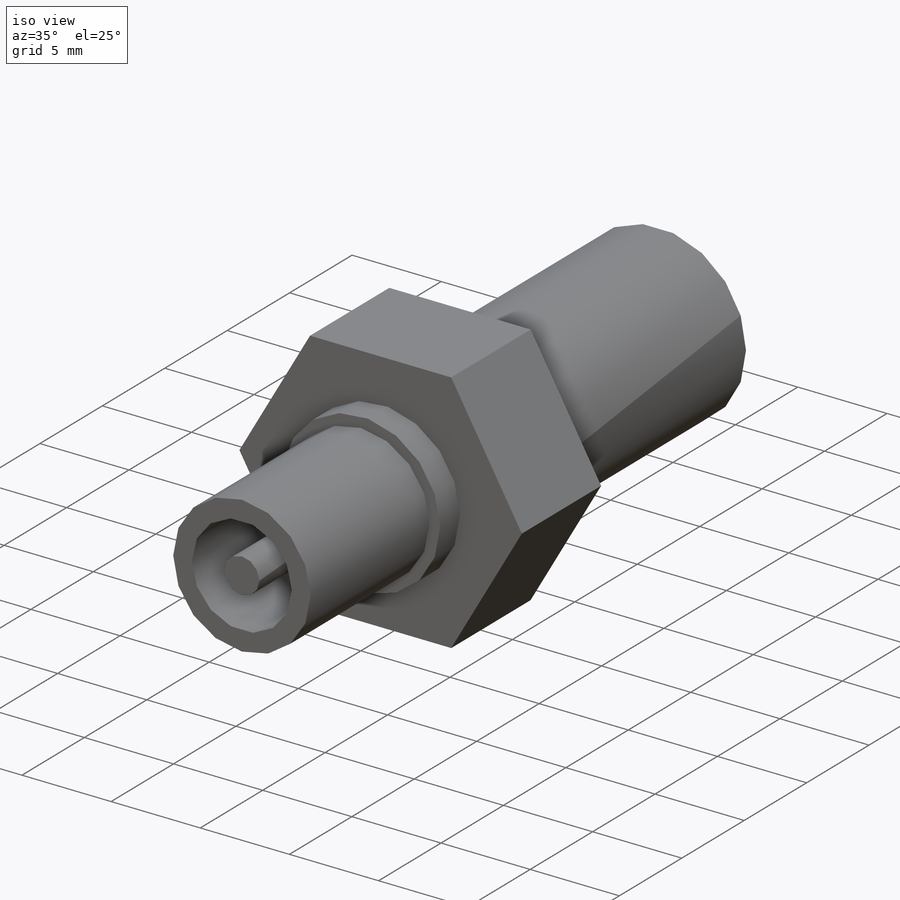
[diagram: iso view]
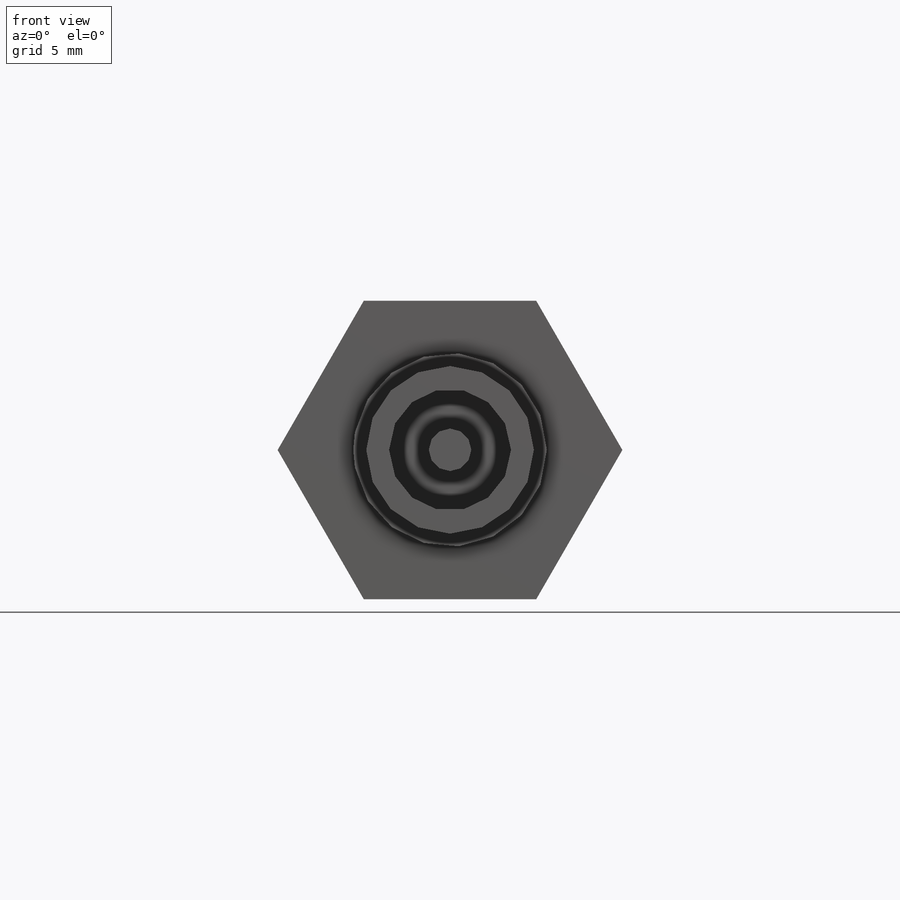
[diagram: front view]
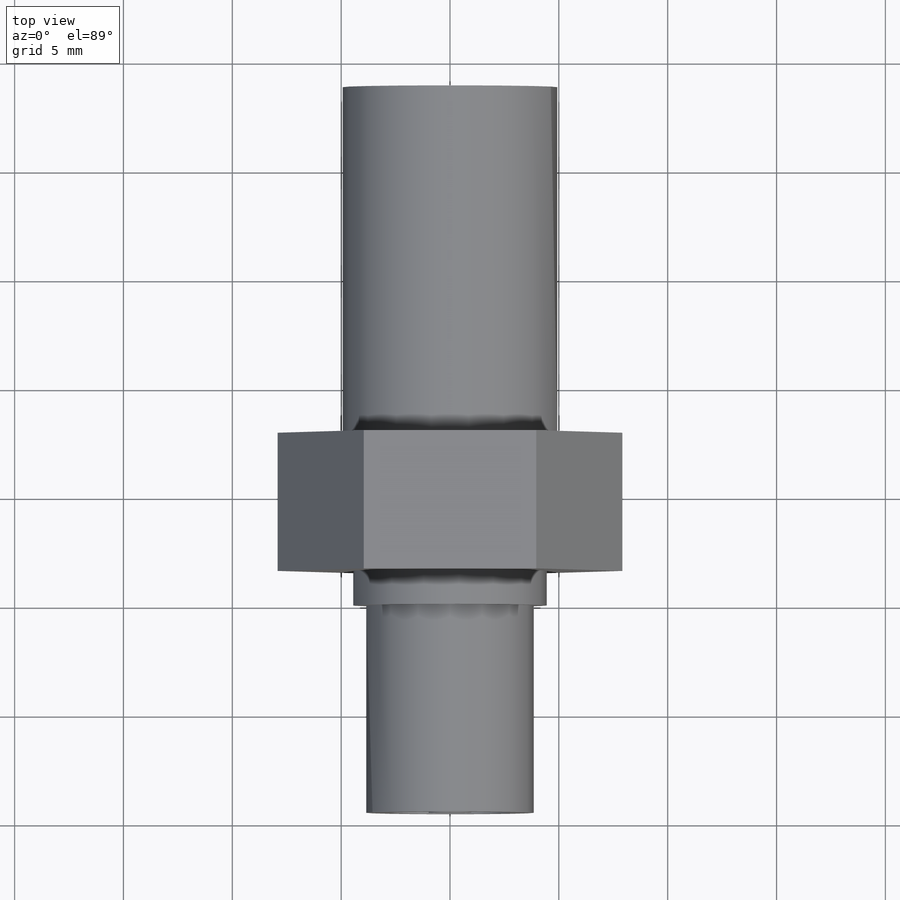
[diagram: top view]
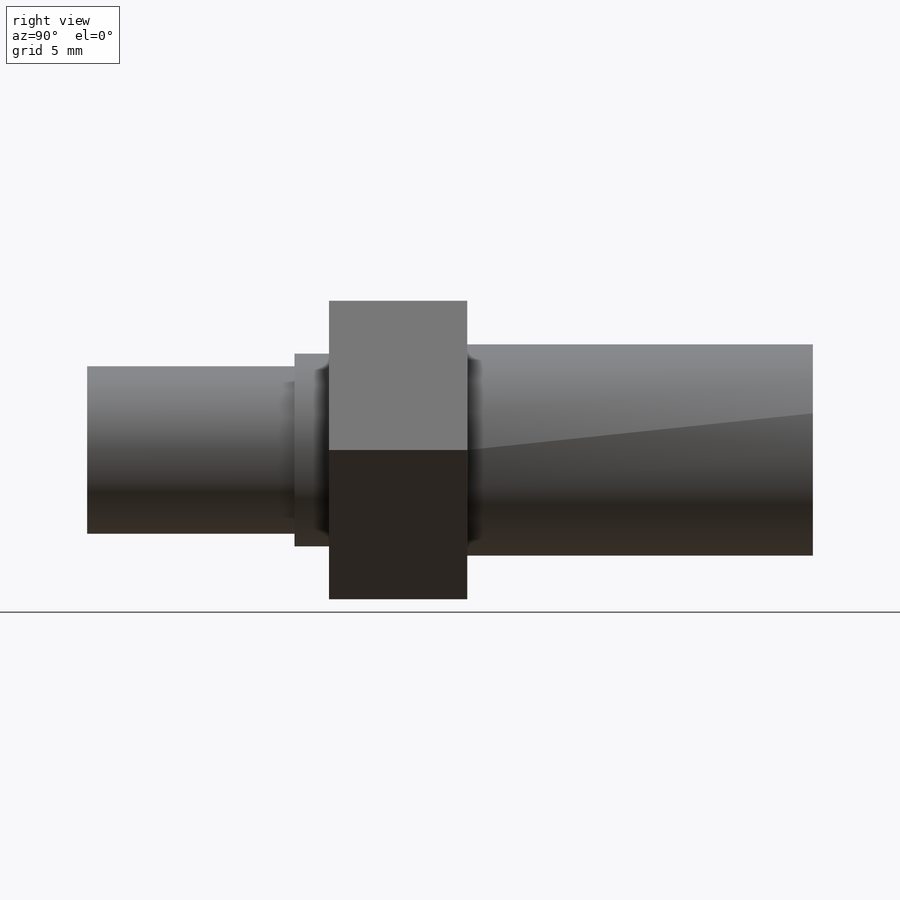
[diagram: right view]
SOLIDWORKS PART (.sldprt)
format: sldprt  version: not decoded by parser v0  size: 234,496 bytes
history: native  units: mm
features: sketch x5, extrude x4, material x1, cut_extrude x1 (+11 scaffold rows collapsed)
feature tree (22):
  scaffold x11  (default folders/planes/origin — collapsed)
  material  "Chrome Stainless Steel"
  sketch  "Sketch1"  dims[D1=~6.429928mm]
  extrude  "Extrude1"  Depth=9.525mm
  sketch  "Sketch2"  dims[D1=4.826mm]
  extrude  "Extrude2"  Depth=1.5875mm
  sketch  "Sketch3"  dims[D1=13.716mm]
  extrude  "Extrude3"  Depth=6.35mm
  sketch  "Sketch4"  dims[D1=5.1435mm]
  extrude  "Extrude4"  Depth=15.875mm
  sketch  "Sketch5"
  cut_extrude  "Cut-Extrude1"  Depth=9.525mm
decode coverage: 9 of 10 modeling features carry decoded parameters
note: ~ marks probable driven/reference dimensions
note: suppression state not decoded; provenance and decode notes live in map.json
